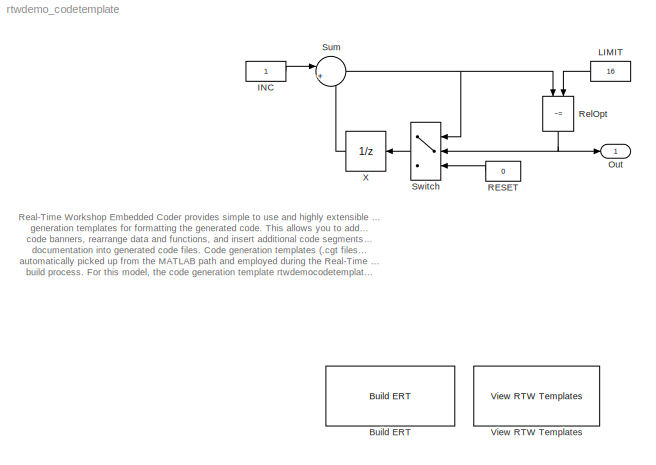
MODEL rtwdemo_codetemplate
KIND model
BLOCK [Reference] Build ERT  REF=rtwdemowidgets/Build ERT
  Ports = []
  ShowPortLabels = on
  SourceBlock = rtwdemowidgets/Build ERT
  attrib_overrides = {'ERTSrcFileBannerTemplate', 'ERTHdrFileBannerTemplate', 'ERTDataSrcFileTemplate', 'ERTDataHdrFileTemplate'}
BLOCK [Constant] INC
  OutDataTypeMode = uint8
BLOCK [Constant] LIMIT
  OutDataTypeMode = uint8
  Value = 16
BLOCK [Outport] Out
  BusOutputAsStruct = off
  IconDisplay = Port number
BLOCK [Constant] RESET
  OutDataTypeMode = uint8
  Value = 0
BLOCK [RelationalOperator] RelOpt
  Operator = ~=
BLOCK [Sum] Sum
  IconShape = round
  Inputs = |++
  Ports = [2, 1]
  SaturateOnIntegerOverflow = off
BLOCK [Switch] Switch
  Threshold = .5
BLOCK [Reference] View RTW Templates  REF=rtwdemowidgets/View RTW Templates
  Ports = []
  ShowPortLabels = on
  SourceBlock = rtwdemowidgets/View RTW Templates
BLOCK [UnitDelay] X
  StateIdentifier = X
ANNOTATION (root): Real-Time Workshop Embedded Coder provides simple to use and highly extensible code\ngeneration templates for formatting the generated code. This allows you to add custom\ncode banners, rearrange data and functions, and insert additional code segments and\ndocumentation into generated code files. Code generation templates (.cgt files) are\nautomatically picked up from the MATLAB path and employed ...<+274ch>
LINE INC:1 -> Sum:1
LINE LIMIT:1 -> RelOpt:2
LINE RESET:1 -> Switch:3
NET RelOpt:1 -> Out:1, Switch:2
NET Sum:1 -> RelOpt:1, Switch:1
LINE Switch:1 -> X:1
LINE X:1 -> Sum:2
note: NET lines group one-source signal fan-out (src -> all destinations, sorted); 1:1 wires keep LINE
